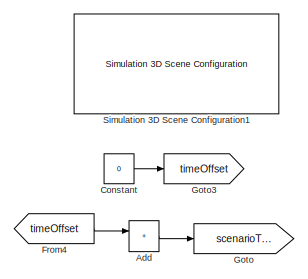
[diagram: root canvas - part 1/4, top center region]
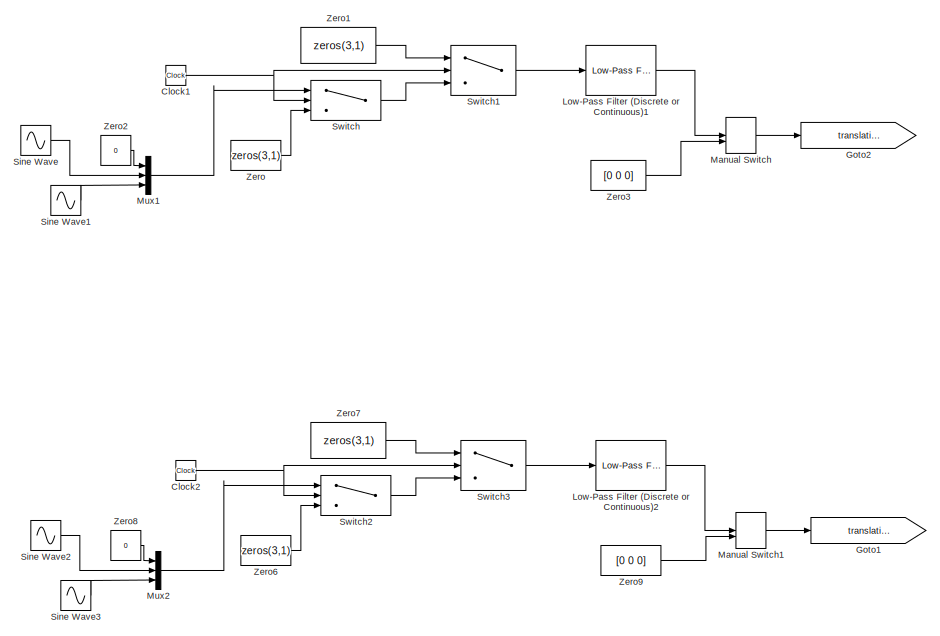
[diagram: root canvas - part 2/4, middle left region]
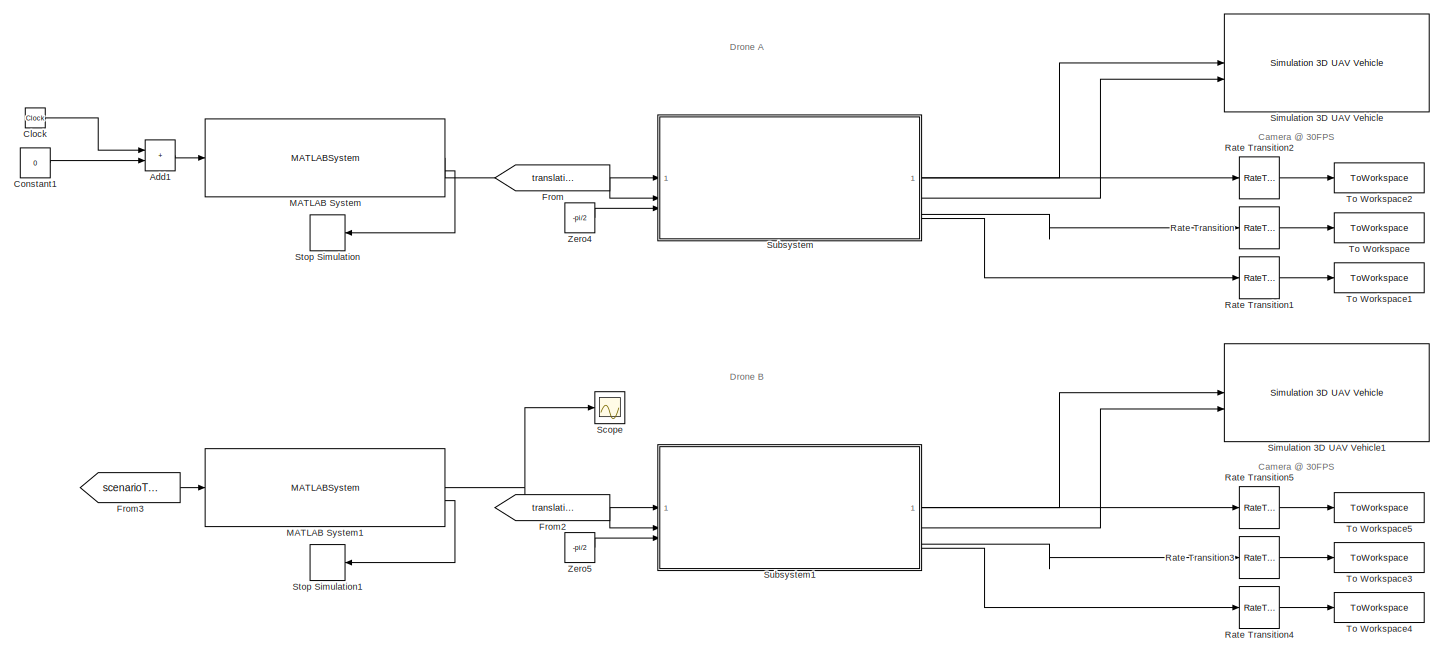
[diagram: root canvas - part 3/4, central region]
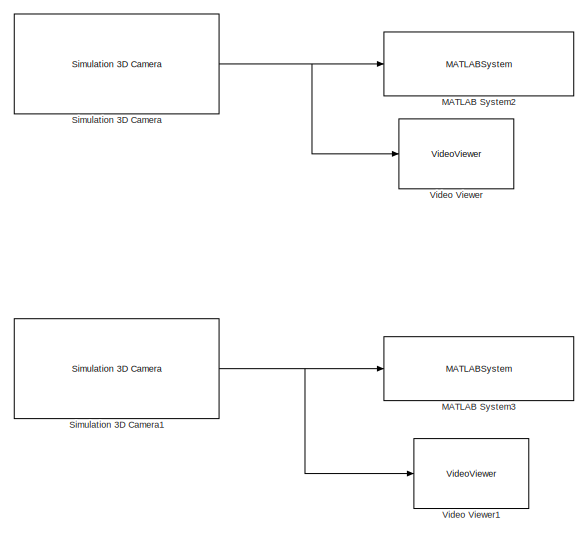
[diagram: root canvas - part 4/4, bottom right region]
MODEL slx_0209c609e1e9
KIND model
CONFIG AbsTol = auto
CONFIG EnableMultiTasking = off
CONFIG FixedStep = auto
CONFIG MaxStep = auto
CONFIG MinStep = auto
CONFIG RelTol = 1e-3
CONFIG SampleTimeConstraint = Unconstrained
CONFIG SolverName = FixedStepAuto
CONFIG StartTime = 0.0
CONFIG StopTime = inf
BLOCK [Sum] Add
  IconShape = rectangular
BLOCK [Sum] Add1
  IconShape = rectangular
BLOCK [Clock] Clock
BLOCK [Clock] Clock1
BLOCK [Clock] Clock2
BLOCK [Constant] Constant
  Value = 0
BLOCK [Constant] Constant1
  Value = 0
BLOCK [From] From
  GotoTag = translationOffset_a
BLOCK [From] From2
  GotoTag = translationOffset_b
BLOCK [From] From3
  GotoTag = scenarioTime
BLOCK [From] From4
  GotoTag = timeOffset
BLOCK [Goto] Goto
  GotoTag = scenarioTime
BLOCK [Goto] Goto1
  GotoTag = translationOffset_b
BLOCK [Goto] Goto2
  GotoTag = translationOffset_a
BLOCK [Goto] Goto3
  GotoTag = timeOffset
BLOCK [Reference] Low-Pass Filter (Discrete or Continuous)1  REF=eeGeneralControl/Low-Pass Filter
(Discrete or Continuous)
  LibrarySourceBlock = ee_sl_lib/General Control/Low-Pass Filter\n(Discrete or Continuous)
  SourceBlock = eeGeneralControl/Low-Pass Filter\n(Discrete or Continuous)
  SourceType = Low-Pass Filter (Discrete or Continuous)
BLOCK [Reference] Low-Pass Filter (Discrete or Continuous)2  REF=eeGeneralControl/Low-Pass Filter
(Discrete or Continuous)
  LibrarySourceBlock = ee_sl_lib/General Control/Low-Pass Filter\n(Discrete or Continuous)
  SourceBlock = eeGeneralControl/Low-Pass Filter\n(Discrete or Continuous)
  SourceType = Low-Pass Filter (Discrete or Continuous)
BLOCK [MATLABSystem] MATLAB System
  MaskDisplay = disp('SmoothBasicWaypointManager');\nport_label('input',1,'time');\nport_label('output',1,'waypoint');\nport_label('output',2,'finished');
  MaskType = SmoothBasicWaypointManager
  ScenarioName = 9a
  ScenariosDirectory = <userpath>\Documents\SEN5\CollaborativeSLAM\Scenarios
  SimulateUsing = Interpreted execution
  StepTime = 0.01
  System = SmoothBasicWaypointManager
BLOCK [MATLABSystem] MATLAB System1
  MaskDisplay = disp('SmoothBasicWaypointManager');\nport_label('input',1,'time');\nport_label('output',1,'waypoint');\nport_label('output',2,'finished');
  MaskType = SmoothBasicWaypointManager
  ScenarioName = 9b
  ScenariosDirectory = <userpath>\Documents\SEN5\CollaborativeSLAM\Scenarios
  SimulateUsing = Interpreted execution
  StepTime = 0.01
  System = SmoothBasicWaypointManager
BLOCK [MATLABSystem] MATLAB System2
  BufferSize = 20
  Commented = on
  EnableGrayscale = on
  ImageSize = [ 720, 1280 ]
  ScenarioName = 7_a
  ScenariosDirectory = <userpath>\Documents\SEN5\CollaborativeSLAM\Scenarios
  SimulateUsing = Interpreted execution
  System = ScenarioBatchRecorder
BLOCK [MATLABSystem] MATLAB System3
  BufferSize = 20
  Commented = on
  EnableGrayscale = on
  ImageSize = [ 720, 1280 ]
  ScenarioName = 7_b
  ScenariosDirectory = <userpath>\Documents\SEN5\CollaborativeSLAM\Scenarios
  SimulateUsing = Interpreted execution
  System = ScenarioBatchRecorder
BLOCK [ManualSwitch] Manual Switch
  CurrentSetting = 0
BLOCK [ManualSwitch] Manual Switch1
  CurrentSetting = 0
BLOCK [Mux] Mux1
  DisplayOption = bar
  Inputs = 3
BLOCK [Mux] Mux2
  DisplayOption = bar
  Inputs = 3
BLOCK [RateTransition] Rate Transition
  OutPortSampleTime = 0.01
BLOCK [RateTransition] Rate Transition1
  OutPortSampleTime = 0.01
BLOCK [RateTransition] Rate Transition2
  OutPortSampleTime = 0.01
BLOCK [RateTransition] Rate Transition3
  OutPortSampleTime = 0.01
BLOCK [RateTransition] Rate Transition4
  OutPortSampleTime = 0.01
BLOCK [RateTransition] Rate Transition5
  OutPortSampleTime = 0.01
BLOCK [Scope] Scope
  Floating = off
  NumInputPorts = 1
  ScopeSpecificationString = Simulink.scopes.TimeScopeBlockCfg('CurrentConfiguration', extmgr.ConfigurationSet(extmgr.Configuration('Core','General UI',true),extmgr.Configuration('Core','Source UI',true),extmgr.Configuration('Sources','WiredSimulink',true,'DataLoggingVariableName','ScopeData1'),extmgr.Configuration('Visuals','Time Domain',true),extmgr.Configuration('Tools','Plot Navigation',true),extmgr.Configuration('Tools',...<+40ch>
BLOCK [Reference] Simulation 3D Camera  REF=sim3dcameralib/Simulation 3D Camera
  LibrarySourceBlock = drivingsim3d/Simulation 3D Camera
  Priority = 1
  SourceBlock = sim3dcameralib/Simulation 3D Camera
  SourceType = Simulation 3D Camera
BLOCK [Reference] Simulation 3D Camera1  REF=sim3dcameralib/Simulation 3D Camera
  LibrarySourceBlock = drivingsim3d/Simulation 3D Camera
  Priority = 1
  SourceBlock = sim3dcameralib/Simulation 3D Camera
  SourceType = Simulation 3D Camera
BLOCK [Reference] Simulation 3D Scene Configuration1  REF=sim3dlib/Simulation 3D Scene Configuration
  LibrarySourceBlock = uavsim3dlib/Simulation 3D Scene Configuration
  Priority = 0
  SourceBlock = sim3dlib/Simulation 3D Scene Configuration
  SourceType = Simulation 3D Scene Configuration
BLOCK [Reference] Simulation 3D UAV Vehicle  REF=uavsim3dlib/Simulation 3D UAV Vehicle
  Priority = -1
  SourceBlock = uavsim3dlib/Simulation 3D UAV Vehicle
  SourceType = Simulation 3D UAV Vehicle
BLOCK [Reference] Simulation 3D UAV Vehicle1  REF=uavsim3dlib/Simulation 3D UAV Vehicle
  Priority = -1
  SourceBlock = uavsim3dlib/Simulation 3D UAV Vehicle
  SourceType = Simulation 3D UAV Vehicle
BLOCK [Sin] Sine Wave
  Frequency = 2*pi/3
  SampleTime = 0
BLOCK [Sin] Sine Wave1
  Frequency = 2*pi/3
  Phase = pi/2
  SampleTime = 0
BLOCK [Sin] Sine Wave2
  Frequency = 2*pi/3
  SampleTime = 0
BLOCK [Sin] Sine Wave3
  Frequency = 2*pi/3
  Phase = pi/2
  SampleTime = 0
BLOCK [Stop] Stop Simulation
  Commented = on
  NameLocation = top
BLOCK [Stop] Stop Simulation1
  NameLocation = top
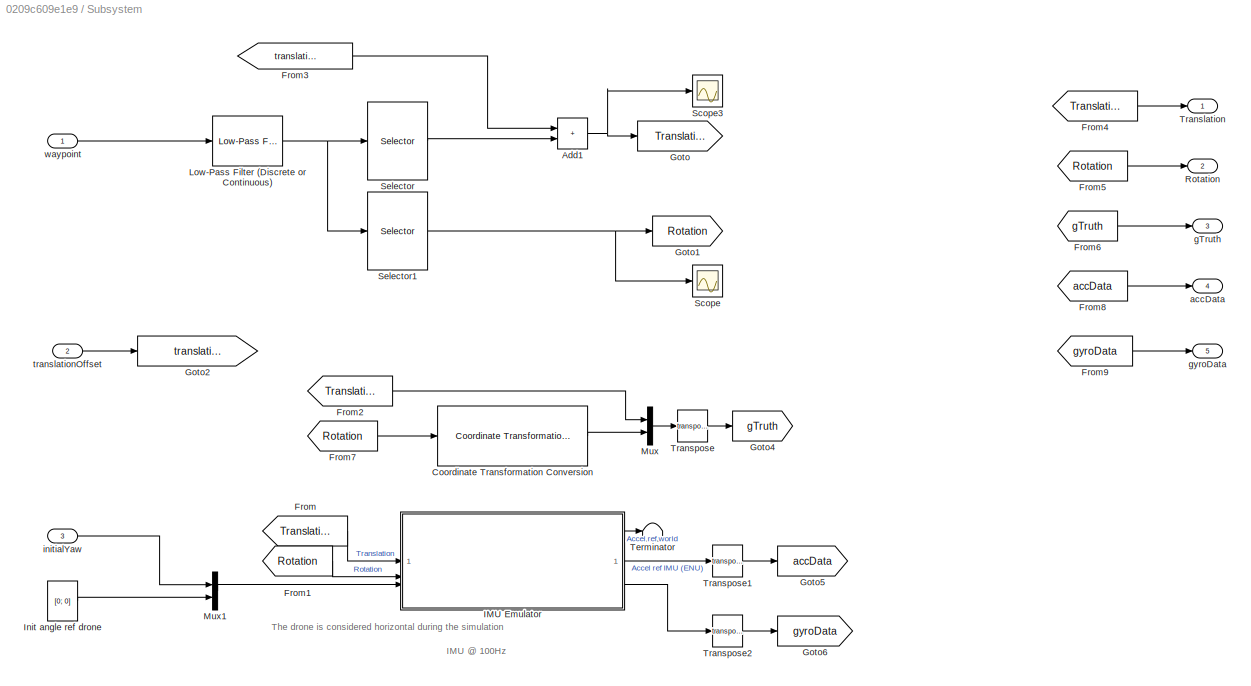
BLOCK [SubSystem] Subsystem
BLOCK [Sum] Subsystem/Add1
  IconShape = rectangular
BLOCK [Reference] Subsystem/Coordinate Transformation Conversion  REF=robotcorelib/Coordinate Transformation Conversion
  LibrarySourceBlock = navlib/Utilities/Coordinate Transformation Conversion
  SourceBlock = robotcorelib/Coordinate Transformation Conversion
  SourceType = robotics.slcore.internal.block.CoordinateTransformationConversion
BLOCK [From] Subsystem/From
  GotoTag = Translation
BLOCK [From] Subsystem/From1
  GotoTag = Rotation
BLOCK [From] Subsystem/From2
  GotoTag = Translation
BLOCK [From] Subsystem/From3
  GotoTag = translationOffset
BLOCK [From] Subsystem/From4
  GotoTag = Translation
BLOCK [From] Subsystem/From5
  GotoTag = Rotation
BLOCK [From] Subsystem/From6
  GotoTag = gTruth
BLOCK [From] Subsystem/From7
  GotoTag = Rotation
BLOCK [From] Subsystem/From8
  GotoTag = accData
BLOCK [From] Subsystem/From9
  GotoTag = gyroData
BLOCK [Goto] Subsystem/Goto
  GotoTag = Translation
BLOCK [Goto] Subsystem/Goto1
  GotoTag = Rotation
BLOCK [Goto] Subsystem/Goto2
  GotoTag = translationOffset
BLOCK [Goto] Subsystem/Goto4
  GotoTag = gTruth
BLOCK [Goto] Subsystem/Goto5
  GotoTag = accData
BLOCK [Goto] Subsystem/Goto6
  GotoTag = gyroData
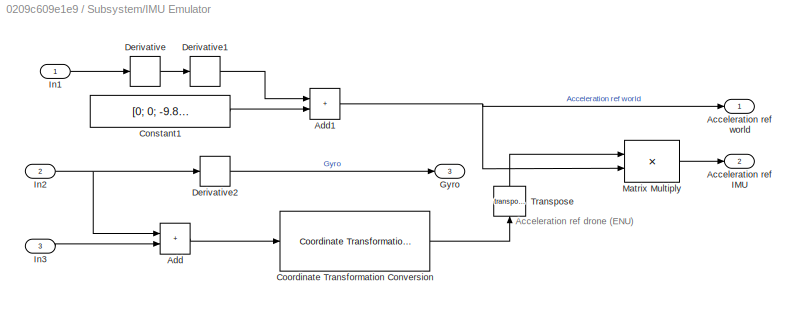
BLOCK [SubSystem] Subsystem/IMU Emulator
BLOCK [Outport] Subsystem/IMU Emulator/Acceleration ref IMU
  Port = 2
BLOCK [Outport] Subsystem/IMU Emulator/Acceleration ref world
BLOCK [Sum] Subsystem/IMU Emulator/Add
  IconShape = rectangular
BLOCK [Sum] Subsystem/IMU Emulator/Add1
  IconShape = rectangular
BLOCK [Constant] Subsystem/IMU Emulator/Constant1
  Value = [0; 0; -9.81]
BLOCK [Reference] Subsystem/IMU Emulator/Coordinate Transformation Conversion  REF=robotcorelib/Coordinate Transformation Conversion
  LibrarySourceBlock = navlib/Utilities/Coordinate Transformation Conversion
  SourceBlock = robotcorelib/Coordinate Transformation Conversion
  SourceType = robotics.slcore.internal.block.CoordinateTransformationConversion
BLOCK [Derivative] Subsystem/IMU Emulator/Derivative
BLOCK [Derivative] Subsystem/IMU Emulator/Derivative1
BLOCK [Derivative] Subsystem/IMU Emulator/Derivative2
BLOCK [Outport] Subsystem/IMU Emulator/Gyro
  Port = 3
BLOCK [Inport] Subsystem/IMU Emulator/In1
BLOCK [Inport] Subsystem/IMU Emulator/In2
  Port = 2
BLOCK [Inport] Subsystem/IMU Emulator/In3
  Port = 3
BLOCK [Product] Subsystem/IMU Emulator/Matrix Multiply
  Multiplication = Matrix(*)
BLOCK [Math] Subsystem/IMU Emulator/Transpose
  NameLocation = right
  Operator = transpose
BLOCK [Constant] Subsystem/Init angle ref drone
  Value = [0; 0]
  VectorParams1D = off
BLOCK [Reference] Subsystem/Low-Pass Filter (Discrete or Continuous)  REF=eeGeneralControl/Low-Pass Filter
(Discrete or Continuous)
  LibrarySourceBlock = ee_sl_lib/General Control/Low-Pass Filter\n(Discrete or Continuous)
  SourceBlock = eeGeneralControl/Low-Pass Filter\n(Discrete or Continuous)
  SourceType = Low-Pass Filter (Discrete or Continuous)
BLOCK [Mux] Subsystem/Mux
  DisplayOption = bar
  Inputs = 2
BLOCK [Mux] Subsystem/Mux1
  DisplayOption = bar
  Inputs = 2
BLOCK [Outport] Subsystem/Rotation
  Port = 2
BLOCK [Scope] Subsystem/Scope
  Floating = off
  NumInputPorts = 1
  ScopeSpecificationString = Simulink.scopes.TimeScopeBlockCfg('CurrentConfiguration', extmgr.ConfigurationSet(extmgr.Configuration('Core','General UI',true),extmgr.Configuration('Core','Source UI',true),extmgr.Configuration('Sources','WiredSimulink',true),extmgr.Configuration('Visuals','Time Domain',true,'SerializedDisplays',{struct('MinYLimReal','-22.97466','MaxYLimReal','26.11469','YLabelReal','','MinYLimMag','0.00000','Ma...<+1483ch>
BLOCK [Scope] Subsystem/Scope3
  Floating = off
  NumInputPorts = 1
  ScopeSpecificationString = Simulink.scopes.TimeScopeBlockCfg('CurrentConfiguration', extmgr.ConfigurationSet(extmgr.Configuration('Core','General UI',true),extmgr.Configuration('Core','Source UI',true),extmgr.Configuration('Sources','WiredSimulink',true,'DataLoggingVariableName','ScopeData1'),extmgr.Configuration('Visuals','Time Domain',true,'SerializedDisplays',{struct('MinYLimReal','-2.95','MaxYLimReal','6.55','YLabelReal...<+1782ch>
BLOCK [Selector] Subsystem/Selector
  IndexOptions = Index vector (dialog)
  Indices = [1 2 3]
  InputPortWidth = 6
  OutputSizes = 1
BLOCK [Selector] Subsystem/Selector1
  IndexOptions = Index vector (dialog)
  Indices = [4 5 6]
  InputPortWidth = 6
  OutputSizes = 1
BLOCK [Terminator] Subsystem/Terminator
BLOCK [Outport] Subsystem/Translation
BLOCK [Math] Subsystem/Transpose
  Operator = transpose
BLOCK [Math] Subsystem/Transpose1
  Operator = transpose
BLOCK [Math] Subsystem/Transpose2
  Operator = transpose
BLOCK [Outport] Subsystem/accData
  Port = 4
BLOCK [Outport] Subsystem/gTruth
  Port = 3
BLOCK [Outport] Subsystem/gyroData
  Port = 5
BLOCK [Inport] Subsystem/initialYaw
  Port = 3
BLOCK [Inport] Subsystem/translationOffset
  Port = 2
BLOCK [Inport] Subsystem/waypoint
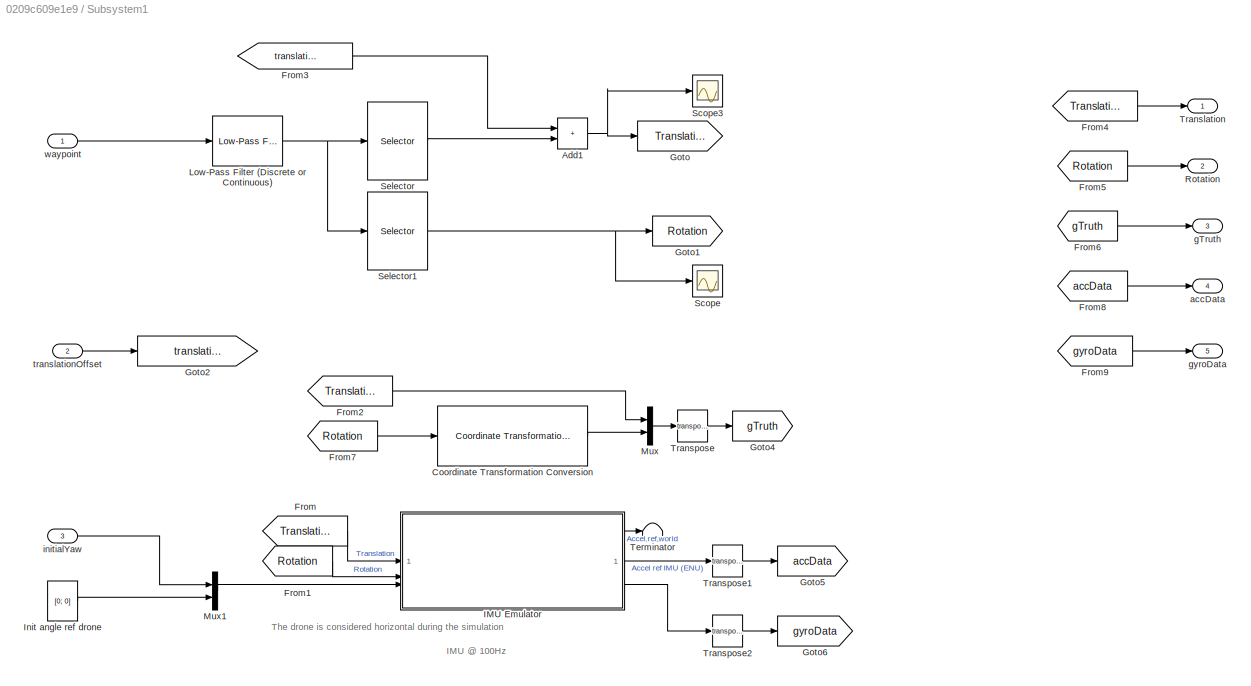
BLOCK [SubSystem] Subsystem1
BLOCK [Sum] Subsystem1/Add1
  IconShape = rectangular
BLOCK [Reference] Subsystem1/Coordinate Transformation Conversion  REF=robotcorelib/Coordinate Transformation Conversion
  SourceBlock = robotcorelib/Coordinate Transformation Conversion
  SourceType = robotics.slcore.internal.block.CoordinateTransformationConversion
BLOCK [From] Subsystem1/From
  GotoTag = Translation
BLOCK [From] Subsystem1/From1
  GotoTag = Rotation
BLOCK [From] Subsystem1/From2
  GotoTag = Translation
BLOCK [From] Subsystem1/From3
  GotoTag = translationOffset
BLOCK [From] Subsystem1/From4
  GotoTag = Translation
BLOCK [From] Subsystem1/From5
  GotoTag = Rotation
BLOCK [From] Subsystem1/From6
  GotoTag = gTruth
BLOCK [From] Subsystem1/From7
  GotoTag = Rotation
BLOCK [From] Subsystem1/From8
  GotoTag = accData
BLOCK [From] Subsystem1/From9
  GotoTag = gyroData
BLOCK [Goto] Subsystem1/Goto
  GotoTag = Translation
BLOCK [Goto] Subsystem1/Goto1
  GotoTag = Rotation
BLOCK [Goto] Subsystem1/Goto2
  GotoTag = translationOffset
BLOCK [Goto] Subsystem1/Goto4
  GotoTag = gTruth
BLOCK [Goto] Subsystem1/Goto5
  GotoTag = accData
BLOCK [Goto] Subsystem1/Goto6
  GotoTag = gyroData
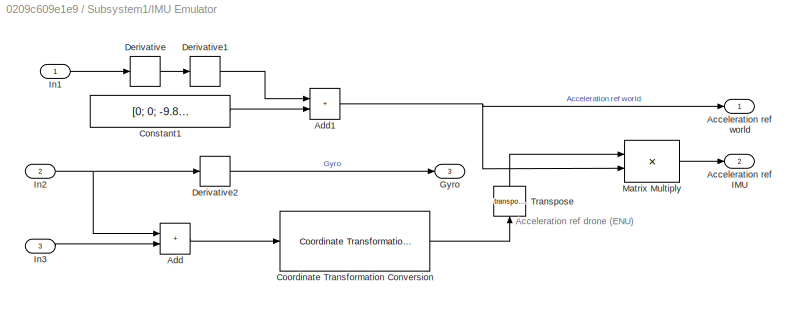
BLOCK [SubSystem] Subsystem1/IMU Emulator
BLOCK [Outport] Subsystem1/IMU Emulator/Acceleration ref IMU
  Port = 2
BLOCK [Outport] Subsystem1/IMU Emulator/Acceleration ref world
BLOCK [Sum] Subsystem1/IMU Emulator/Add
  IconShape = rectangular
BLOCK [Sum] Subsystem1/IMU Emulator/Add1
  IconShape = rectangular
BLOCK [Constant] Subsystem1/IMU Emulator/Constant1
  Value = [0; 0; -9.81]
BLOCK [Reference] Subsystem1/IMU Emulator/Coordinate Transformation Conversion  REF=robotcorelib/Coordinate Transformation Conversion
  SourceBlock = robotcorelib/Coordinate Transformation Conversion
  SourceType = robotics.slcore.internal.block.CoordinateTransformationConversion
BLOCK [Derivative] Subsystem1/IMU Emulator/Derivative
BLOCK [Derivative] Subsystem1/IMU Emulator/Derivative1
BLOCK [Derivative] Subsystem1/IMU Emulator/Derivative2
BLOCK [Outport] Subsystem1/IMU Emulator/Gyro
  Port = 3
BLOCK [Inport] Subsystem1/IMU Emulator/In1
BLOCK [Inport] Subsystem1/IMU Emulator/In2
  Port = 2
BLOCK [Inport] Subsystem1/IMU Emulator/In3
  Port = 3
BLOCK [Product] Subsystem1/IMU Emulator/Matrix Multiply
  Multiplication = Matrix(*)
BLOCK [Math] Subsystem1/IMU Emulator/Transpose
  NameLocation = right
  Operator = transpose
BLOCK [Constant] Subsystem1/Init angle ref drone
  Value = [0; 0]
  VectorParams1D = off
BLOCK [Reference] Subsystem1/Low-Pass Filter (Discrete or Continuous)  REF=eeGeneralControl/Low-Pass Filter
(Discrete or Continuous)
  SourceBlock = eeGeneralControl/Low-Pass Filter\n(Discrete or Continuous)
  SourceType = Low-Pass Filter (Discrete or Continuous)
BLOCK [Mux] Subsystem1/Mux
  DisplayOption = bar
  Inputs = 2
BLOCK [Mux] Subsystem1/Mux1
  DisplayOption = bar
  Inputs = 2
BLOCK [Outport] Subsystem1/Rotation
  Port = 2
BLOCK [Scope] Subsystem1/Scope
  Floating = off
  NumInputPorts = 1
  ScopeSpecificationString = Simulink.scopes.TimeScopeBlockCfg('CurrentConfiguration', extmgr.ConfigurationSet(extmgr.Configuration('Core','General UI',true),extmgr.Configuration('Core','Source UI',true),extmgr.Configuration('Sources','WiredSimulink',true),extmgr.Configuration('Visuals','Time Domain',true,'SerializedDisplays',{struct('MinYLimReal','-22.97466','MaxYLimReal','26.11469','YLabelReal','','MinYLimMag','0.00000','Ma...<+1483ch>
BLOCK [Scope] Subsystem1/Scope3
  Floating = off
  NumInputPorts = 1
  ScopeSpecificationString = Simulink.scopes.TimeScopeBlockCfg('CurrentConfiguration', extmgr.ConfigurationSet(extmgr.Configuration('Core','General UI',true),extmgr.Configuration('Core','Source UI',true),extmgr.Configuration('Sources','WiredSimulink',true,'DataLoggingVariableName','ScopeData1'),extmgr.Configuration('Visuals','Time Domain',true,'SerializedDisplays',{struct('MinYLimReal','-2.95','MaxYLimReal','6.55','YLabelReal...<+1782ch>
BLOCK [Selector] Subsystem1/Selector
  IndexOptions = Index vector (dialog)
  Indices = [1 2 3]
  InputPortWidth = 6
  OutputSizes = 1
BLOCK [Selector] Subsystem1/Selector1
  IndexOptions = Index vector (dialog)
  Indices = [4 5 6]
  InputPortWidth = 6
  OutputSizes = 1
BLOCK [Terminator] Subsystem1/Terminator
BLOCK [Outport] Subsystem1/Translation
BLOCK [Math] Subsystem1/Transpose
  Operator = transpose
BLOCK [Math] Subsystem1/Transpose1
  Operator = transpose
BLOCK [Math] Subsystem1/Transpose2
  Operator = transpose
BLOCK [Outport] Subsystem1/accData
  Port = 4
BLOCK [Outport] Subsystem1/gTruth
  Port = 3
BLOCK [Outport] Subsystem1/gyroData
  Port = 5
BLOCK [Inport] Subsystem1/initialYaw
  Port = 3
BLOCK [Inport] Subsystem1/translationOffset
  Port = 2
BLOCK [Inport] Subsystem1/waypoint
BLOCK [Switch] Switch
  InputSameDT = off
  SaturateOnIntegerOverflow = off
  Threshold = 10
BLOCK [Switch] Switch1
  InputSameDT = off
  SaturateOnIntegerOverflow = off
  Threshold = 30
BLOCK [Switch] Switch2
  InputSameDT = off
  SaturateOnIntegerOverflow = off
  Threshold = 10
BLOCK [Switch] Switch3
  InputSameDT = off
  SaturateOnIntegerOverflow = off
  Threshold = 30
BLOCK [ToWorkspace] To Workspace
  FixptAsFi = on
  MaxDataPoints = inf
  SampleTime = -1
  SaveFormat = Timeseries
  VariableName = AccData_a
BLOCK [ToWorkspace] To Workspace1
  FixptAsFi = on
  MaxDataPoints = inf
  SampleTime = -1
  SaveFormat = Timeseries
  VariableName = GyroData_a
BLOCK [ToWorkspace] To Workspace2
  FixptAsFi = on
  MaxDataPoints = inf
  SampleTime = -1
  SaveFormat = Timeseries
  VariableName = gTruth_a
BLOCK [ToWorkspace] To Workspace3
  FixptAsFi = on
  MaxDataPoints = inf
  SampleTime = -1
  SaveFormat = Timeseries
  VariableName = AccData_b
BLOCK [ToWorkspace] To Workspace4
  FixptAsFi = on
  MaxDataPoints = inf
  SampleTime = -1
  SaveFormat = Timeseries
  VariableName = GyroData_b
BLOCK [ToWorkspace] To Workspace5
  FixptAsFi = on
  MaxDataPoints = inf
  SampleTime = -1
  SaveFormat = Timeseries
  VariableName = gTruth_b
BLOCK [VideoViewer] Video Viewer
  FigPos = [2 1029 958 921]
  ScopeSpecificationString = vipscopes.VideoViewerScopeCfg('CurrentConfiguration', extmgr.ConfigurationSet(extmgr.Configuration('Core','General UI',true),extmgr.Configuration('Core','Source UI',true),extmgr.Configuration('Sources','WiredSimulink',true),extmgr.Configuration('Visuals','Video',true),extmgr.Configuration('Tools','Image Navigation Tools',true,'FitToView',true),extmgr.Configuration('Tools','Image Tool',true),extmgr...<+89ch>
  colormapValue = gray(256)
BLOCK [VideoViewer] Video Viewer1
  FigPos = [962 1029 958 921]
  ScopeSpecificationString = vipscopes.VideoViewerScopeCfg('CurrentConfiguration', extmgr.ConfigurationSet(extmgr.Configuration('Core','General UI',true),extmgr.Configuration('Core','Source UI',true),extmgr.Configuration('Sources','WiredSimulink',true),extmgr.Configuration('Visuals','Video',true),extmgr.Configuration('Tools','Image Navigation Tools',true,'FitToView',true),extmgr.Configuration('Tools','Image Tool',true),extmgr...<+91ch>
  colormapValue = gray(256)
BLOCK [Constant] Zero
  OutDataTypeStr = Inherit: Inherit via back propagation
  Value = zeros(3,1)
  VectorParams1D = off
BLOCK [Constant] Zero1
  OutDataTypeStr = Inherit: Inherit via back propagation
  Value = zeros(3,1)
BLOCK [Constant] Zero2
  OutDataTypeStr = Inherit: Inherit via back propagation
  Value = 0
BLOCK [Constant] Zero3
  OutDataTypeStr = Inherit: Inherit via back propagation
  Value = [0 0 0]
BLOCK [Constant] Zero4
  OutDataTypeStr = Inherit: Inherit via back propagation
  Value = -pi/2
BLOCK [Constant] Zero5
  OutDataTypeStr = Inherit: Inherit via back propagation
  Value = -pi/2
BLOCK [Constant] Zero6
  OutDataTypeStr = Inherit: Inherit via back propagation
  Value = zeros(3,1)
  VectorParams1D = off
BLOCK [Constant] Zero7
  OutDataTypeStr = Inherit: Inherit via back propagation
  Value = zeros(3,1)
BLOCK [Constant] Zero8
  OutDataTypeStr = Inherit: Inherit via back propagation
  Value = 0
BLOCK [Constant] Zero9
  OutDataTypeStr = Inherit: Inherit via back propagation
  Value = [0 0 0]
ANNOTATION (root): Drone A
ANNOTATION (root): Drone B
ANNOTATION (root): Camera @ 30FPS
ANNOTATION Subsystem: The drone is considered horizontal during the simulation
ANNOTATION Subsystem: IMU @ 100Hz
ANNOTATION Subsystem/IMU Emulator: Acceleration ref drone (ENU)
ANNOTATION Subsystem1: The drone is considered horizontal during the simulation
ANNOTATION Subsystem1: IMU @ 100Hz
ANNOTATION Subsystem1/IMU Emulator: Acceleration ref drone (ENU)
LINE Add1:1 -> MATLAB System:1
LINE Add:1 -> Goto:1
NET Clock1:1 -> Switch1:2, Switch:2
NET Clock2:1 -> Switch2:2, Switch3:2
LINE Clock:1 -> Add1:1
LINE Constant1:1 -> Add1:2
LINE Constant:1 -> Goto3:1
LINE From2:1 -> Subsystem1:2
LINE From3:1 -> MATLAB System1:1
LINE From4:1 -> Add:1
LINE From:1 -> Subsystem:2
LINE Low-Pass Filter (Discrete or Continuous)1:1 -> Manual Switch:1
LINE Low-Pass Filter (Discrete or Continuous)2:1 -> Manual Switch1:1
NET MATLAB System1:1 -> Scope:1, Subsystem1:1
LINE MATLAB System1:2 -> Stop Simulation1:1
LINE MATLAB System:1 -> Subsystem:1
LINE MATLAB System:2 -> Stop Simulation:1
LINE Manual Switch1:1 -> Goto1:1
LINE Manual Switch:1 -> Goto2:1
LINE Mux1:1 -> Switch:1
LINE Mux2:1 -> Switch2:1
LINE Rate Transition1:1 -> To Workspace1:1
LINE Rate Transition2:1 -> To Workspace2:1
LINE Rate Transition3:1 -> To Workspace3:1
LINE Rate Transition4:1 -> To Workspace4:1
LINE Rate Transition5:1 -> To Workspace5:1
LINE Rate Transition:1 -> To Workspace:1
NET Simulation 3D Camera1:1 -> MATLAB System3:1, Video Viewer1:1
NET Simulation 3D Camera:1 -> MATLAB System2:1, Video Viewer:1
LINE Sine Wave1:1 -> Mux1:3
LINE Sine Wave2:1 -> Mux2:2
LINE Sine Wave3:1 -> Mux2:3
LINE Sine Wave:1 -> Mux1:2
NET Subsystem/Add1:1 -> Subsystem/Goto:1, Subsystem/Scope3:1
LINE Subsystem/Coordinate Transformation Conversion:1 -> Subsystem/Mux:2
LINE Subsystem/From1:1 -> Subsystem/IMU Emulator:2
LINE Subsystem/From2:1 -> Subsystem/Mux:1
LINE Subsystem/From3:1 -> Subsystem/Add1:1
LINE Subsystem/From4:1 -> Subsystem/Translation:1
LINE Subsystem/From5:1 -> Subsystem/Rotation:1
LINE Subsystem/From6:1 -> Subsystem/gTruth:1
LINE Subsystem/From7:1 -> Subsystem/Coordinate Transformation Conversion:1
LINE Subsystem/From8:1 -> Subsystem/accData:1
LINE Subsystem/From9:1 -> Subsystem/gyroData:1
LINE Subsystem/From:1 -> Subsystem/IMU Emulator:1
NET Subsystem/IMU Emulator/Add1:1 -> Subsystem/IMU Emulator/Acceleration ref world:1, Subsystem/IMU Emulator/Matrix Multiply:2
LINE Subsystem/IMU Emulator/Add:1 -> Subsystem/IMU Emulator/Coordinate Transformation Conversion:1
LINE Subsystem/IMU Emulator/Constant1:1 -> Subsystem/IMU Emulator/Add1:2
LINE Subsystem/IMU Emulator/Coordinate Transformation Conversion:1 -> Subsystem/IMU Emulator/Transpose:1
LINE Subsystem/IMU Emulator/Derivative1:1 -> Subsystem/IMU Emulator/Add1:1
LINE Subsystem/IMU Emulator/Derivative2:1 -> Subsystem/IMU Emulator/Gyro:1
LINE Subsystem/IMU Emulator/Derivative:1 -> Subsystem/IMU Emulator/Derivative1:1
LINE Subsystem/IMU Emulator/In1:1 -> Subsystem/IMU Emulator/Derivative:1
NET Subsystem/IMU Emulator/In2:1 -> Subsystem/IMU Emulator/Add:1, Subsystem/IMU Emulator/Derivative2:1
LINE Subsystem/IMU Emulator/In3:1 -> Subsystem/IMU Emulator/Add:2
LINE Subsystem/IMU Emulator/Matrix Multiply:1 -> Subsystem/IMU Emulator/Acceleration ref IMU:1
LINE Subsystem/IMU Emulator/Transpose:1 -> Subsystem/IMU Emulator/Matrix Multiply:1
LINE Subsystem/IMU Emulator:1 -> Subsystem/Terminator:1
LINE Subsystem/IMU Emulator:2 -> Subsystem/Transpose1:1
LINE Subsystem/IMU Emulator:3 -> Subsystem/Transpose2:1
LINE Subsystem/Init angle ref drone:1 -> Subsystem/Mux1:2
NET Subsystem/Low-Pass Filter (Discrete or Continuous):1 -> Subsystem/Selector1:1, Subsystem/Selector:1
LINE Subsystem/Mux1:1 -> Subsystem/IMU Emulator:3
LINE Subsystem/Mux:1 -> Subsystem/Transpose:1
NET Subsystem/Selector1:1 -> Subsystem/Goto1:1, Subsystem/Scope:1
LINE Subsystem/Selector:1 -> Subsystem/Add1:2
LINE Subsystem/Transpose1:1 -> Subsystem/Goto5:1
LINE Subsystem/Transpose2:1 -> Subsystem/Goto6:1
LINE Subsystem/Transpose:1 -> Subsystem/Goto4:1
LINE Subsystem/initialYaw:1 -> Subsystem/Mux1:1
LINE Subsystem/translationOffset:1 -> Subsystem/Goto2:1
LINE Subsystem/waypoint:1 -> Subsystem/Low-Pass Filter (Discrete or Continuous):1
NET Subsystem1/Add1:1 -> Subsystem1/Goto:1, Subsystem1/Scope3:1
LINE Subsystem1/Coordinate Transformation Conversion:1 -> Subsystem1/Mux:2
LINE Subsystem1/From1:1 -> Subsystem1/IMU Emulator:2
LINE Subsystem1/From2:1 -> Subsystem1/Mux:1
LINE Subsystem1/From3:1 -> Subsystem1/Add1:1
LINE Subsystem1/From4:1 -> Subsystem1/Translation:1
LINE Subsystem1/From5:1 -> Subsystem1/Rotation:1
LINE Subsystem1/From6:1 -> Subsystem1/gTruth:1
LINE Subsystem1/From7:1 -> Subsystem1/Coordinate Transformation Conversion:1
LINE Subsystem1/From8:1 -> Subsystem1/accData:1
LINE Subsystem1/From9:1 -> Subsystem1/gyroData:1
LINE Subsystem1/From:1 -> Subsystem1/IMU Emulator:1
NET Subsystem1/IMU Emulator/Add1:1 -> Subsystem1/IMU Emulator/Acceleration ref world:1, Subsystem1/IMU Emulator/Matrix Multiply:2
LINE Subsystem1/IMU Emulator/Add:1 -> Subsystem1/IMU Emulator/Coordinate Transformation Conversion:1
LINE Subsystem1/IMU Emulator/Constant1:1 -> Subsystem1/IMU Emulator/Add1:2
LINE Subsystem1/IMU Emulator/Coordinate Transformation Conversion:1 -> Subsystem1/IMU Emulator/Transpose:1
LINE Subsystem1/IMU Emulator/Derivative1:1 -> Subsystem1/IMU Emulator/Add1:1
LINE Subsystem1/IMU Emulator/Derivative2:1 -> Subsystem1/IMU Emulator/Gyro:1
LINE Subsystem1/IMU Emulator/Derivative:1 -> Subsystem1/IMU Emulator/Derivative1:1
LINE Subsystem1/IMU Emulator/In1:1 -> Subsystem1/IMU Emulator/Derivative:1
NET Subsystem1/IMU Emulator/In2:1 -> Subsystem1/IMU Emulator/Add:1, Subsystem1/IMU Emulator/Derivative2:1
LINE Subsystem1/IMU Emulator/In3:1 -> Subsystem1/IMU Emulator/Add:2
LINE Subsystem1/IMU Emulator/Matrix Multiply:1 -> Subsystem1/IMU Emulator/Acceleration ref IMU:1
LINE Subsystem1/IMU Emulator/Transpose:1 -> Subsystem1/IMU Emulator/Matrix Multiply:1
LINE Subsystem1/IMU Emulator:1 -> Subsystem1/Terminator:1
LINE Subsystem1/IMU Emulator:2 -> Subsystem1/Transpose1:1
LINE Subsystem1/IMU Emulator:3 -> Subsystem1/Transpose2:1
LINE Subsystem1/Init angle ref drone:1 -> Subsystem1/Mux1:2
NET Subsystem1/Low-Pass Filter (Discrete or Continuous):1 -> Subsystem1/Selector1:1, Subsystem1/Selector:1
LINE Subsystem1/Mux1:1 -> Subsystem1/IMU Emulator:3
LINE Subsystem1/Mux:1 -> Subsystem1/Transpose:1
NET Subsystem1/Selector1:1 -> Subsystem1/Goto1:1, Subsystem1/Scope:1
LINE Subsystem1/Selector:1 -> Subsystem1/Add1:2
LINE Subsystem1/Transpose1:1 -> Subsystem1/Goto5:1
LINE Subsystem1/Transpose2:1 -> Subsystem1/Goto6:1
LINE Subsystem1/Transpose:1 -> Subsystem1/Goto4:1
LINE Subsystem1/initialYaw:1 -> Subsystem1/Mux1:1
LINE Subsystem1/translationOffset:1 -> Subsystem1/Goto2:1
LINE Subsystem1/waypoint:1 -> Subsystem1/Low-Pass Filter (Discrete or Continuous):1
LINE Subsystem1:1 -> Simulation 3D UAV Vehicle1:1
LINE Subsystem1:2 -> Simulation 3D UAV Vehicle1:2
LINE Subsystem1:3 -> Rate Transition5:1
LINE Subsystem1:4 -> Rate Transition3:1
LINE Subsystem1:5 -> Rate Transition4:1
LINE Subsystem:1 -> Simulation 3D UAV Vehicle:1
LINE Subsystem:2 -> Simulation 3D UAV Vehicle:2
LINE Subsystem:3 -> Rate Transition2:1
LINE Subsystem:4 -> Rate Transition:1
LINE Subsystem:5 -> Rate Transition1:1
LINE Switch1:1 -> Low-Pass Filter (Discrete or Continuous)1:1
LINE Switch2:1 -> Switch3:3
LINE Switch3:1 -> Low-Pass Filter (Discrete or Continuous)2:1
LINE Switch:1 -> Switch1:3
LINE Zero1:1 -> Switch1:1
LINE Zero2:1 -> Mux1:1
LINE Zero3:1 -> Manual Switch:2
LINE Zero4:1 -> Subsystem:3
LINE Zero5:1 -> Subsystem1:3
LINE Zero6:1 -> Switch2:3
LINE Zero7:1 -> Switch3:1
LINE Zero8:1 -> Mux2:1
LINE Zero9:1 -> Manual Switch1:2
LINE Zero:1 -> Switch:3
note: NET lines group one-source signal fan-out (src -> all destinations, sorted); 1:1 wires keep LINE
